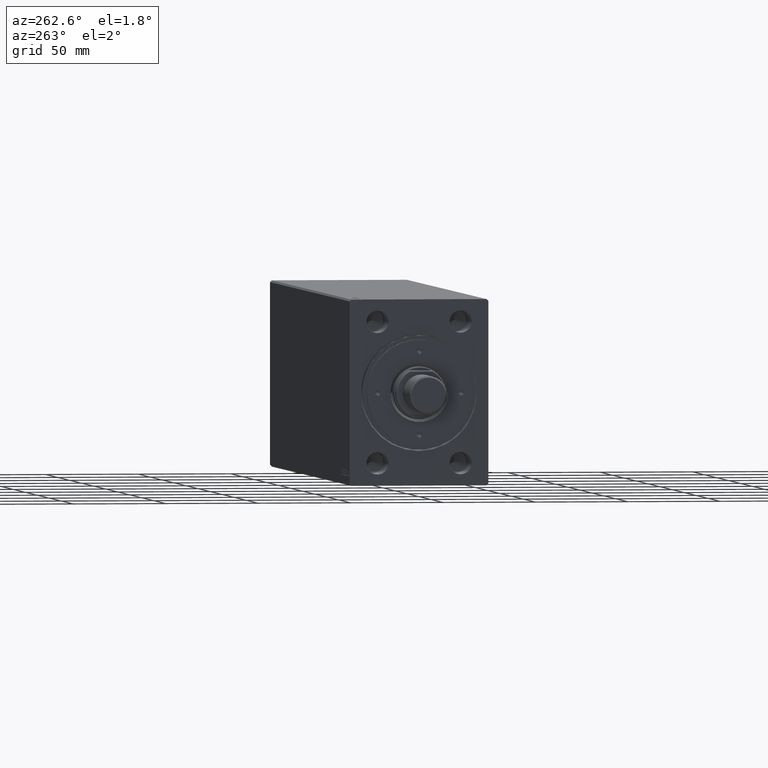
[diagram: clean part render]
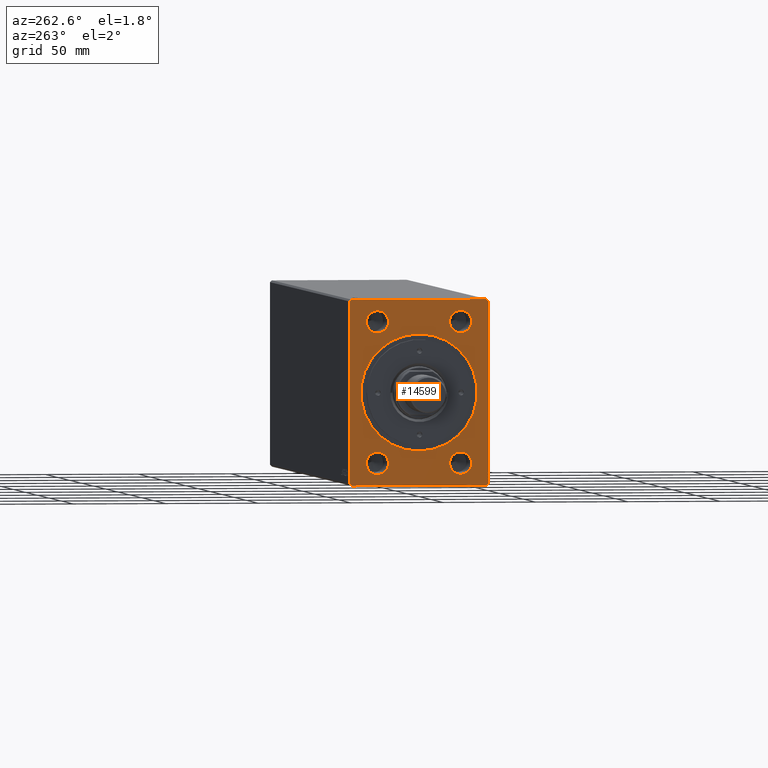
[diagram: same view with one face highlighted and labeled with its STEP entity id]
A machine part, auxiliary view. The second image highlights one B-rep face of the part: STEP entity #14599.
In plain terms, the highlighted planar face has unit normal (1, 0, 0).
Its self-contained STEP definition (entity closure, byte-faithful):
#95 = AXIS2_PLACEMENT_3D ( 'NONE', #24542, #28759, #25170 ) ;
#291 = CARTESIAN_POINT ( 'NONE',  ( 2.449293598294703949E-16, 22.50000000000000000, -44.00000000000000000 ) ) ;
#551 = CARTESIAN_POINT ( 'NONE',  ( 0.000000000000000000, -36.50000000000000711, -50.00000000000000000 ) ) ;
#614 = LINE ( 'NONE', #10013, #21384 ) ;
#1087 = EDGE_CURVE ( 'NONE', #31143, #15616, #42506, .T. ) ;
#1643 = CARTESIAN_POINT ( 'NONE',  ( 0.000000000000000000, 0.000000000000000000, 0.000000000000000000 ) ) ;
#1666 = ORIENTED_EDGE ( 'NONE', *, *, #24878, .F. ) ;
#1889 = CIRCLE ( 'NONE', #43339, 5.999999999999998224 ) ;
#1964 = EDGE_CURVE ( 'NONE', #16050, #11678, #1889, .T. ) ;
#2528 = EDGE_CURVE ( 'NONE', #17040, #31054, #12613, .T. ) ;
#2582 = ORIENTED_EDGE ( 'NONE', *, *, #26953, .T. ) ;
#2846 = CARTESIAN_POINT ( 'NONE',  ( 0.000000000000000000, 0.000000000000000000, 31.45000000000008811 ) ) ;
#3296 = DIRECTION ( 'NONE',  ( 0.000000000000000000, 0.000000000000000000, 1.000000000000000000 ) ) ;
#3459 = EDGE_LOOP ( 'NONE', ( #2582, #13035 ) ) ;
#3701 = EDGE_CURVE ( 'NONE', #42965, #40000, #17342, .T. ) ;
#3993 = VERTEX_POINT ( 'NONE', #291 ) ;
#4183 = DIRECTION ( 'NONE',  ( 0.000000000000000000, 0.7071067811865474617, 0.7071067811865474617 ) ) ;
#4214 = DIRECTION ( 'NONE',  ( -1.000000000000000000, -0.000000000000000000, -0.000000000000000000 ) ) ;
#4320 = AXIS2_PLACEMENT_3D ( 'NONE', #36440, #39794, #43369 ) ;
#4482 = LINE ( 'NONE', #37253, #24612 ) ;
#4802 = CARTESIAN_POINT ( 'NONE',  ( 0.000000000000000000, 37.50000000000000711, 49.00000000000000000 ) ) ;
#4841 = CARTESIAN_POINT ( 'NONE',  ( 2.449293598294703949E-16, 22.50000000000000000, 38.00000000000000000 ) ) ;
#4878 = CIRCLE ( 'NONE', #12737, 5.999999999999998224 ) ;
#5052 = LINE ( 'NONE', #7963, #36479 ) ;
#5514 = LINE ( 'NONE', #26803, #15671 ) ;
#5880 = CARTESIAN_POINT ( 'NONE',  ( 2.449293598294703949E-16, -22.50000000000000000, -38.00000000000000711 ) ) ;
#7102 = AXIS2_PLACEMENT_3D ( 'NONE', #5880, #40575, #17054 ) ;
#7512 = CARTESIAN_POINT ( 'NONE',  ( 0.000000000000000000, -37.50000000000001421, 48.99999999999998579 ) ) ;
#7522 = DIRECTION ( 'NONE',  ( -1.000000000000000000, -0.000000000000000000, -0.000000000000000000 ) ) ;
#7963 = CARTESIAN_POINT ( 'NONE',  ( 0.000000000000000000, -37.50000000000001421, -49.00000000000000000 ) ) ;
#7965 = DIRECTION ( 'NONE',  ( 0.000000000000000000, 0.000000000000000000, 1.000000000000000000 ) ) ;
#8248 = DIRECTION ( 'NONE',  ( 0.000000000000000000, -0.7071067811865474617, 0.7071067811865474617 ) ) ;
#8620 = CARTESIAN_POINT ( 'NONE',  ( 2.449293598294703949E-16, -22.50000000000000000, 38.00000000000000000 ) ) ;
#8929 = EDGE_CURVE ( 'NONE', #31355, #3993, #21386, .T. ) ;
#8978 = CARTESIAN_POINT ( 'NONE',  ( 2.449293598294703949E-16, 22.50000000000000000, -38.00000000000000000 ) ) ;
#9939 = ORIENTED_EDGE ( 'NONE', *, *, #43759, .F. ) ;
#9972 = CIRCLE ( 'NONE', #7102, 5.999999999999998224 ) ;
#10013 = CARTESIAN_POINT ( 'NONE',  ( 0.000000000000000000, 36.50000000000000711, -50.00000000000000000 ) ) ;
#10173 = DIRECTION ( 'NONE',  ( 0.000000000000000000, 1.000000000000000000, 0.000000000000000000 ) ) ;
#10974 = ORIENTED_EDGE ( 'NONE', *, *, #1087, .F. ) ;
#10980 = EDGE_CURVE ( 'NONE', #15468, #19701, #5514, .T. ) ;
#11061 = CIRCLE ( 'NONE', #36097, 5.999999999999998224 ) ;
#11074 = FACE_BOUND ( 'NONE', #25959, .T. ) ;
#11329 = DIRECTION ( 'NONE',  ( 0.000000000000000000, 0.000000000000000000, 1.000000000000000000 ) ) ;
#11474 = DIRECTION ( 'NONE',  ( 1.000000000000000000, 0.000000000000000000, 0.000000000000000000 ) ) ;
#11678 = VERTEX_POINT ( 'NONE', #23005 ) ;
#12359 = DIRECTION ( 'NONE',  ( 0.000000000000000000, 0.000000000000000000, -1.000000000000000000 ) ) ;
#12397 = DIRECTION ( 'NONE',  ( 0.000000000000000000, 0.000000000000000000, -1.000000000000000000 ) ) ;
#12421 = AXIS2_PLACEMENT_3D ( 'NONE', #4841, #22081, #11329 ) ;
#12613 = CIRCLE ( 'NONE', #37674, 5.999999999999998224 ) ;
#12737 = AXIS2_PLACEMENT_3D ( 'NONE', #8978, #36087, #29366 ) ;
#12920 = EDGE_CURVE ( 'NONE', #27645, #20346, #19336, .T. ) ;
#12975 = DIRECTION ( 'NONE',  ( 0.000000000000000000, 0.000000000000000000, 1.000000000000000000 ) ) ;
#13035 = ORIENTED_EDGE ( 'NONE', *, *, #32937, .T. ) ;
#13227 = CARTESIAN_POINT ( 'NONE',  ( 0.000000000000000000, 37.50000000000000711, -49.00000000000000000 ) ) ;
#13562 = CARTESIAN_POINT ( 'NONE',  ( 2.449293598294703949E-16, 22.50000000000000000, 44.00000000000000000 ) ) ;
#13584 = EDGE_LOOP ( 'NONE', ( #23352, #26589 ) ) ;
#13942 = ORIENTED_EDGE ( 'NONE', *, *, #10980, .F. ) ;
#13962 = VERTEX_POINT ( 'NONE', #13227 ) ;
#14297 = ORIENTED_EDGE ( 'NONE', *, *, #40950, .F. ) ;
#14599 = ADVANCED_FACE ( 'NONE', ( #28108, #11074, #18027, #24744, #34623, #24947 ), #21380, .F. ) ;
#14630 = LINE ( 'NONE', #35456, #29476 ) ;
#14720 = VECTOR ( 'NONE', #8248, 1000.000000000000114 ) ;
#14933 = AXIS2_PLACEMENT_3D ( 'NONE', #37168, #23737, #12975 ) ;
#15136 = VERTEX_POINT ( 'NONE', #2846 ) ;
#15363 = CARTESIAN_POINT ( 'NONE',  ( 0.000000000000000000, 0.000000000000000000, 0.000000000000000000 ) ) ;
#15468 = VERTEX_POINT ( 'NONE', #36831 ) ;
#15616 = VERTEX_POINT ( 'NONE', #38746 ) ;
#15671 = VECTOR ( 'NONE', #30378, 1000.000000000000114 ) ;
#16050 = VERTEX_POINT ( 'NONE', #32615 ) ;
#17040 = VERTEX_POINT ( 'NONE', #36450 ) ;
#17054 = DIRECTION ( 'NONE',  ( 0.000000000000000000, 0.000000000000000000, 1.000000000000000000 ) ) ;
#17342 = LINE ( 'NONE', #551, #29084 ) ;
#18027 = FACE_BOUND ( 'NONE', #20096, .T. ) ;
#18743 = CARTESIAN_POINT ( 'NONE',  ( 0.000000000000000000, 36.50000000000000711, -50.00000000000000000 ) ) ;
#19336 = CIRCLE ( 'NONE', #4320, 5.999999999999998224 ) ;
#19701 = VERTEX_POINT ( 'NONE', #7512 ) ;
#20096 = EDGE_LOOP ( 'NONE', ( #24096, #39319 ) ) ;
#20323 = CIRCLE ( 'NONE', #12421, 5.999999999999998224 ) ;
#20346 = VERTEX_POINT ( 'NONE', #36881 ) ;
#20634 = EDGE_CURVE ( 'NONE', #19701, #39933, #29433, .T. ) ;
#20742 = EDGE_LOOP ( 'NONE', ( #36643, #35816 ) ) ;
#21364 = DIRECTION ( 'NONE',  ( 0.000000000000000000, -1.000000000000000000, -1.901066822988281457E-16 ) ) ;
#21380 = PLANE ( 'NONE',  #95 ) ;
#21384 = VECTOR ( 'NONE', #4183, 1000.000000000000114 ) ;
#21386 = CIRCLE ( 'NONE', #14933, 5.999999999999998224 ) ;
#21661 = DIRECTION ( 'NONE',  ( 1.000000000000000000, 0.000000000000000000, 0.000000000000000000 ) ) ;
#22081 = DIRECTION ( 'NONE',  ( -1.000000000000000000, -0.000000000000000000, -0.000000000000000000 ) ) ;
#22298 = DIRECTION ( 'NONE',  ( -1.000000000000000000, -0.000000000000000000, -0.000000000000000000 ) ) ;
#22325 = DIRECTION ( 'NONE',  ( 0.000000000000000000, 0.000000000000000000, -1.000000000000000000 ) ) ;
#23005 = CARTESIAN_POINT ( 'NONE',  ( 2.449293598294703949E-16, -22.50000000000000000, -32.00000000000000711 ) ) ;
#23352 = ORIENTED_EDGE ( 'NONE', *, *, #30186, .F. ) ;
#23737 = DIRECTION ( 'NONE',  ( -1.000000000000000000, -0.000000000000000000, -0.000000000000000000 ) ) ;
#23959 = CARTESIAN_POINT ( 'NONE',  ( 0.000000000000000000, -37.50000000000001421, -49.00000000000000000 ) ) ;
#24084 = CARTESIAN_POINT ( 'NONE',  ( 2.449293598294703949E-16, -22.50000000000000000, 32.00000000000000000 ) ) ;
#24096 = ORIENTED_EDGE ( 'NONE', *, *, #8929, .F. ) ;
#24434 = AXIS2_PLACEMENT_3D ( 'NONE', #15363, #21661, #22325 ) ;
#24473 = ORIENTED_EDGE ( 'NONE', *, *, #41655, .F. ) ;
#24542 = CARTESIAN_POINT ( 'NONE',  ( 0.000000000000000000, 0.000000000000000000, 0.000000000000000000 ) ) ;
#24600 = CARTESIAN_POINT ( 'NONE',  ( 2.449293598294703949E-16, -22.50000000000000000, -38.00000000000000711 ) ) ;
#24612 = VECTOR ( 'NONE', #38735, 1000.000000000000000 ) ;
#24675 = EDGE_CURVE ( 'NONE', #20346, #27645, #11061, .T. ) ;
#24744 = FACE_BOUND ( 'NONE', #20742, .T. ) ;
#24878 = EDGE_CURVE ( 'NONE', #15616, #15468, #14630, .T. ) ;
#24947 = FACE_OUTER_BOUND ( 'NONE', #42910, .T. ) ;
#25170 = DIRECTION ( 'NONE',  ( 0.000000000000000000, 0.000000000000000000, -1.000000000000000000 ) ) ;
#25347 = CARTESIAN_POINT ( 'NONE',  ( 2.449293598294703949E-16, 22.50000000000000000, -32.00000000000000000 ) ) ;
#25959 = EDGE_LOOP ( 'NONE', ( #14297, #33013 ) ) ;
#26589 = ORIENTED_EDGE ( 'NONE', *, *, #2528, .F. ) ;
#26803 = CARTESIAN_POINT ( 'NONE',  ( 0.000000000000000000, -36.50000000000001421, 49.99999999999998579 ) ) ;
#26953 = EDGE_CURVE ( 'NONE', #15136, #33609, #35934, .T. ) ;
#27645 = VERTEX_POINT ( 'NONE', #24084 ) ;
#28108 = FACE_BOUND ( 'NONE', #13584, .T. ) ;
#28170 = DIRECTION ( 'NONE',  ( 0.000000000000000000, 0.000000000000000000, 1.000000000000000000 ) ) ;
#28759 = DIRECTION ( 'NONE',  ( 1.000000000000000000, 0.000000000000000000, 0.000000000000000000 ) ) ;
#28782 = ORIENTED_EDGE ( 'NONE', *, *, #3701, .F. ) ;
#29084 = VECTOR ( 'NONE', #10173, 1000.000000000000000 ) ;
#29366 = DIRECTION ( 'NONE',  ( 0.000000000000000000, 0.000000000000000000, 1.000000000000000000 ) ) ;
#29433 = LINE ( 'NONE', #43083, #40969 ) ;
#29476 = VECTOR ( 'NONE', #21364, 1000.000000000000000 ) ;
#30186 = EDGE_CURVE ( 'NONE', #31054, #17040, #20323, .T. ) ;
#30378 = DIRECTION ( 'NONE',  ( 0.000000000000000000, -0.7071067811865474617, -0.7071067811865474617 ) ) ;
#30489 = EDGE_CURVE ( 'NONE', #13962, #31143, #4482, .T. ) ;
#30571 = CARTESIAN_POINT ( 'NONE',  ( 0.000000000000000000, -36.50000000000000711, -50.00000000000000000 ) ) ;
#31048 = CARTESIAN_POINT ( 'NONE',  ( 2.449293598294703949E-16, 22.50000000000000000, 38.00000000000000000 ) ) ;
#31054 = VERTEX_POINT ( 'NONE', #13562 ) ;
#31143 = VERTEX_POINT ( 'NONE', #4802 ) ;
#31275 = DIRECTION ( 'NONE',  ( 0.000000000000000000, 0.7071067811865500152, -0.7071067811865451302 ) ) ;
#31355 = VERTEX_POINT ( 'NONE', #25347 ) ;
#32615 = CARTESIAN_POINT ( 'NONE',  ( 2.449293598294703949E-16, -22.50000000000000000, -44.00000000000000711 ) ) ;
#32649 = CARTESIAN_POINT ( 'NONE',  ( 0.000000000000000000, 37.50000000000000711, 49.00000000000000000 ) ) ;
#32937 = EDGE_CURVE ( 'NONE', #33609, #15136, #35154, .T. ) ;
#33013 = ORIENTED_EDGE ( 'NONE', *, *, #1964, .F. ) ;
#33609 = VERTEX_POINT ( 'NONE', #43250 ) ;
#33810 = AXIS2_PLACEMENT_3D ( 'NONE', #1643, #11474, #12359 ) ;
#34623 = FACE_BOUND ( 'NONE', #3459, .T. ) ;
#35154 = CIRCLE ( 'NONE', #24434, 31.45000000000008811 ) ;
#35456 = CARTESIAN_POINT ( 'NONE',  ( 0.000000000000000000, 36.50000000000000711, 50.00000000000000000 ) ) ;
#35816 = ORIENTED_EDGE ( 'NONE', *, *, #12920, .F. ) ;
#35934 = CIRCLE ( 'NONE', #33810, 31.45000000000008811 ) ;
#36087 = DIRECTION ( 'NONE',  ( -1.000000000000000000, -0.000000000000000000, -0.000000000000000000 ) ) ;
#36097 = AXIS2_PLACEMENT_3D ( 'NONE', #8620, #22298, #7965 ) ;
#36440 = CARTESIAN_POINT ( 'NONE',  ( 2.449293598294703949E-16, -22.50000000000000000, 38.00000000000000000 ) ) ;
#36450 = CARTESIAN_POINT ( 'NONE',  ( 2.449293598294703949E-16, 22.50000000000000000, 32.00000000000000000 ) ) ;
#36479 = VECTOR ( 'NONE', #31275, 1000.000000000000114 ) ;
#36643 = ORIENTED_EDGE ( 'NONE', *, *, #24675, .F. ) ;
#36831 = CARTESIAN_POINT ( 'NONE',  ( 0.000000000000000000, -36.50000000000001421, 49.99999999999998579 ) ) ;
#36881 = CARTESIAN_POINT ( 'NONE',  ( 2.449293598294703949E-16, -22.50000000000000000, 44.00000000000000000 ) ) ;
#37168 = CARTESIAN_POINT ( 'NONE',  ( 2.449293598294703949E-16, 22.50000000000000000, -38.00000000000000000 ) ) ;
#37253 = CARTESIAN_POINT ( 'NONE',  ( 0.000000000000000000, 37.50000000000000711, -49.00000000000000000 ) ) ;
#37674 = AXIS2_PLACEMENT_3D ( 'NONE', #31048, #7522, #3296 ) ;
#38611 = EDGE_CURVE ( 'NONE', #3993, #31355, #4878, .T. ) ;
#38735 = DIRECTION ( 'NONE',  ( 0.000000000000000000, 0.000000000000000000, 1.000000000000000000 ) ) ;
#38746 = CARTESIAN_POINT ( 'NONE',  ( 0.000000000000000000, 36.50000000000000711, 50.00000000000000000 ) ) ;
#39319 = ORIENTED_EDGE ( 'NONE', *, *, #38611, .F. ) ;
#39794 = DIRECTION ( 'NONE',  ( -1.000000000000000000, -0.000000000000000000, -0.000000000000000000 ) ) ;
#39933 = VERTEX_POINT ( 'NONE', #23959 ) ;
#40000 = VERTEX_POINT ( 'NONE', #18743 ) ;
#40575 = DIRECTION ( 'NONE',  ( -1.000000000000000000, -0.000000000000000000, -0.000000000000000000 ) ) ;
#40950 = EDGE_CURVE ( 'NONE', #11678, #16050, #9972, .T. ) ;
#40969 = VECTOR ( 'NONE', #12397, 1000.000000000000000 ) ;
#41655 = EDGE_CURVE ( 'NONE', #40000, #13962, #614, .T. ) ;
#41980 = ORIENTED_EDGE ( 'NONE', *, *, #20634, .F. ) ;
#42506 = LINE ( 'NONE', #32649, #14720 ) ;
#42910 = EDGE_LOOP ( 'NONE', ( #10974, #42964, #24473, #28782, #9939, #41980, #13942, #1666 ) ) ;
#42964 = ORIENTED_EDGE ( 'NONE', *, *, #30489, .F. ) ;
#42965 = VERTEX_POINT ( 'NONE', #30571 ) ;
#43083 = CARTESIAN_POINT ( 'NONE',  ( 0.000000000000000000, -37.50000000000001421, 48.99999999999998579 ) ) ;
#43250 = CARTESIAN_POINT ( 'NONE',  ( 0.000000000000000000, 3.851514183318436660E-15, -31.45000000000008811 ) ) ;
#43339 = AXIS2_PLACEMENT_3D ( 'NONE', #24600, #4214, #28170 ) ;
#43369 = DIRECTION ( 'NONE',  ( 0.000000000000000000, 0.000000000000000000, 1.000000000000000000 ) ) ;
#43759 = EDGE_CURVE ( 'NONE', #39933, #42965, #5052, .T. ) ;